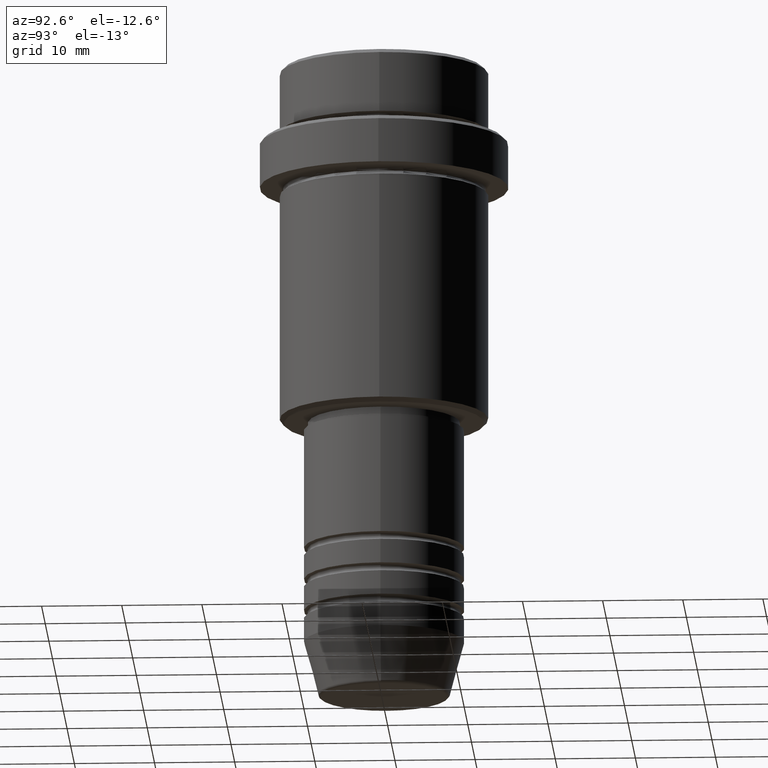
[diagram: clean part render]
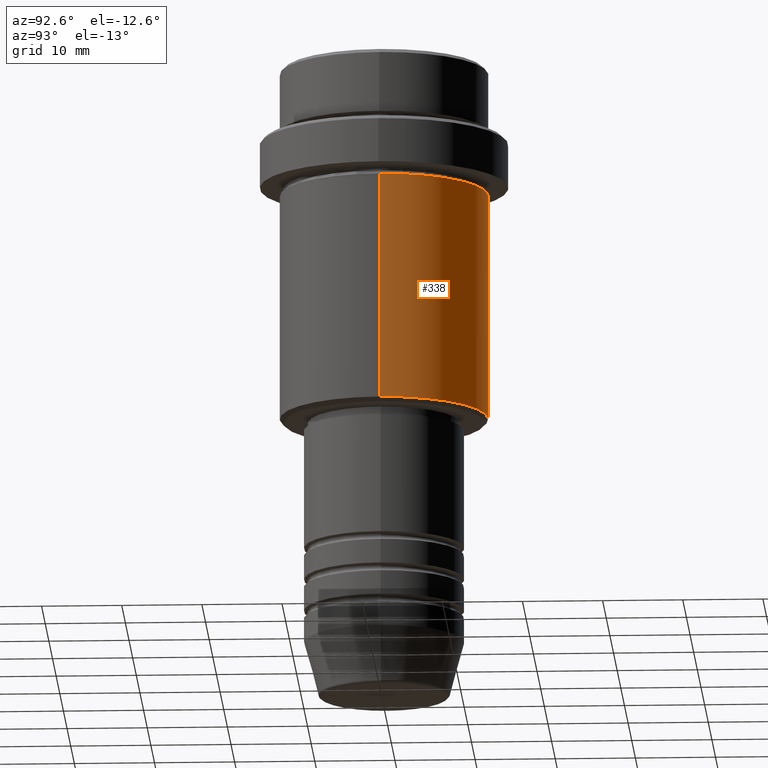
[diagram: same view with one face highlighted and labeled with its STEP entity id]
A machine part, auxiliary view. The second image highlights one B-rep face of the part: STEP entity #338.
In plain terms, the highlighted cylindrical surface (partial cylindrical patch) has radius 13 mm, axis along (-0, -0, 1).
Its self-contained STEP definition (entity closure, byte-faithful):
#5 = DIRECTION ( 'NONE',  ( -0.000000000000000000, -0.000000000000000000, 1.000000000000000000 ) ) ;
#137 = CARTESIAN_POINT ( 'NONE',  ( -13.00000000000000000, 1.592040838891559095E-15, -44.50000000000001421 ) ) ;
#177 = CARTESIAN_POINT ( 'NONE',  ( 0.000000000000000000, 0.000000000000000000, -44.50000000000001421 ) ) ;
#193 = VERTEX_POINT ( 'NONE', #771 ) ;
#238 = DIRECTION ( 'NONE',  ( 1.000000000000000000, 0.000000000000000000, 0.000000000000000000 ) ) ;
#246 = EDGE_CURVE ( 'NONE', #1377, #824, #912, .T. ) ;
#283 = AXIS2_PLACEMENT_3D ( 'NONE', #1219, #1224, #465 ) ;
#312 = CARTESIAN_POINT ( 'NONE',  ( 13.00000000000000000, 0.000000000000000000, -16.00000000000000000 ) ) ;
#314 = EDGE_CURVE ( 'NONE', #1137, #193, #1117, .T. ) ;
#338 = ADVANCED_FACE ( 'NONE', ( #567 ), #359, .T. ) ;
#341 = ORIENTED_EDGE ( 'NONE', *, *, #784, .F. ) ;
#359 = CYLINDRICAL_SURFACE ( 'NONE', #454, 13.00000000000000000 ) ;
#363 = CARTESIAN_POINT ( 'NONE',  ( 13.00000000000000000, 0.000000000000000000, 0.000000000000000000 ) ) ;
#397 = EDGE_LOOP ( 'NONE', ( #484, #744, #923, #341 ) ) ;
#454 = AXIS2_PLACEMENT_3D ( 'NONE', #681, #5, #238 ) ;
#465 = DIRECTION ( 'NONE',  ( 1.000000000000000000, 0.000000000000000000, 0.000000000000000000 ) ) ;
#484 = ORIENTED_EDGE ( 'NONE', *, *, #246, .T. ) ;
#500 = EDGE_CURVE ( 'NONE', #824, #193, #852, .T. ) ;
#529 = DIRECTION ( 'NONE',  ( -1.000000000000000000, 0.000000000000000000, 0.000000000000000000 ) ) ;
#567 = FACE_OUTER_BOUND ( 'NONE', #397, .T. ) ;
#611 = CARTESIAN_POINT ( 'NONE',  ( -13.00000000000000000, 1.592040838891559095E-15, 0.000000000000000000 ) ) ;
#681 = CARTESIAN_POINT ( 'NONE',  ( 0.000000000000000000, 0.000000000000000000, 0.000000000000000000 ) ) ;
#725 = CARTESIAN_POINT ( 'NONE',  ( 13.00000000000000000, 0.000000000000000000, -44.50000000000001421 ) ) ;
#744 = ORIENTED_EDGE ( 'NONE', *, *, #500, .T. ) ;
#771 = CARTESIAN_POINT ( 'NONE',  ( -13.00000000000000000, 1.592040838891559095E-15, -16.00000000000000000 ) ) ;
#784 = EDGE_CURVE ( 'NONE', #1377, #1137, #806, .T. ) ;
#806 = LINE ( 'NONE', #363, #889 ) ;
#824 = VERTEX_POINT ( 'NONE', #137 ) ;
#852 = LINE ( 'NONE', #611, #1074 ) ;
#889 = VECTOR ( 'NONE', #1335, 1000.000000000000000 ) ;
#912 = CIRCLE ( 'NONE', #1146, 13.00000000000000000 ) ;
#923 = ORIENTED_EDGE ( 'NONE', *, *, #314, .F. ) ;
#967 = DIRECTION ( 'NONE',  ( -0.000000000000000000, -0.000000000000000000, 1.000000000000000000 ) ) ;
#1074 = VECTOR ( 'NONE', #967, 1000.000000000000000 ) ;
#1117 = CIRCLE ( 'NONE', #283, 13.00000000000000000 ) ;
#1137 = VERTEX_POINT ( 'NONE', #312 ) ;
#1146 = AXIS2_PLACEMENT_3D ( 'NONE', #177, #1182, #529 ) ;
#1182 = DIRECTION ( 'NONE',  ( -0.000000000000000000, -0.000000000000000000, 1.000000000000000000 ) ) ;
#1219 = CARTESIAN_POINT ( 'NONE',  ( 0.000000000000000000, 0.000000000000000000, -16.00000000000000000 ) ) ;
#1224 = DIRECTION ( 'NONE',  ( -0.000000000000000000, -0.000000000000000000, 1.000000000000000000 ) ) ;
#1335 = DIRECTION ( 'NONE',  ( -0.000000000000000000, -0.000000000000000000, 1.000000000000000000 ) ) ;
#1377 = VERTEX_POINT ( 'NONE', #725 ) ;